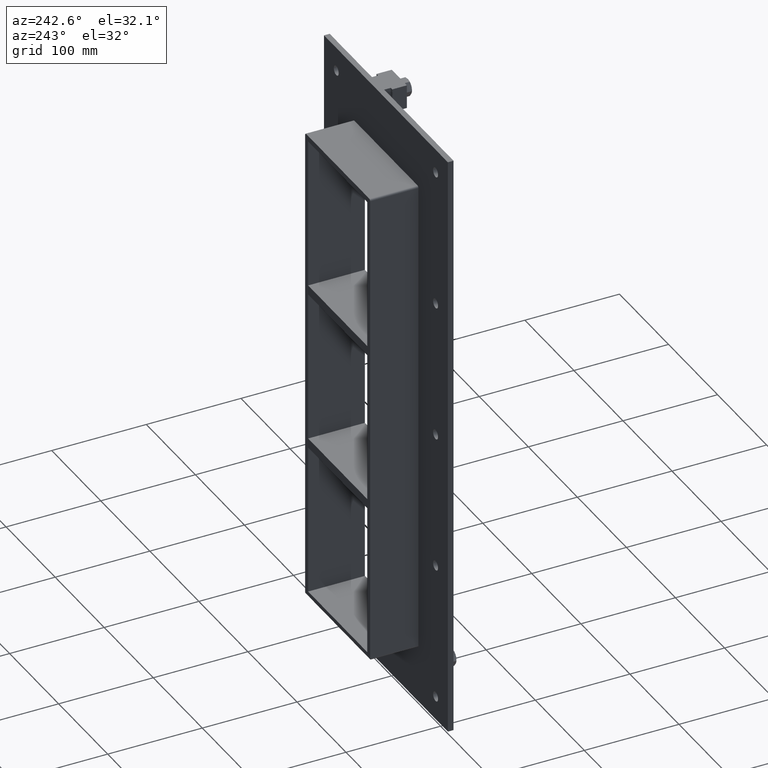
[diagram: clean part render]
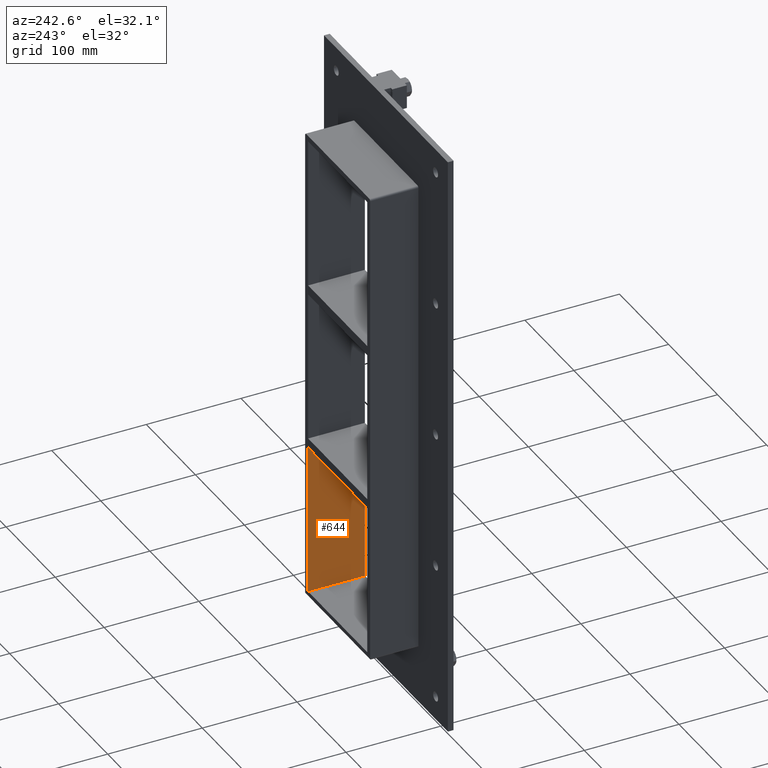
[diagram: same view with one face highlighted and labeled with its STEP entity id]
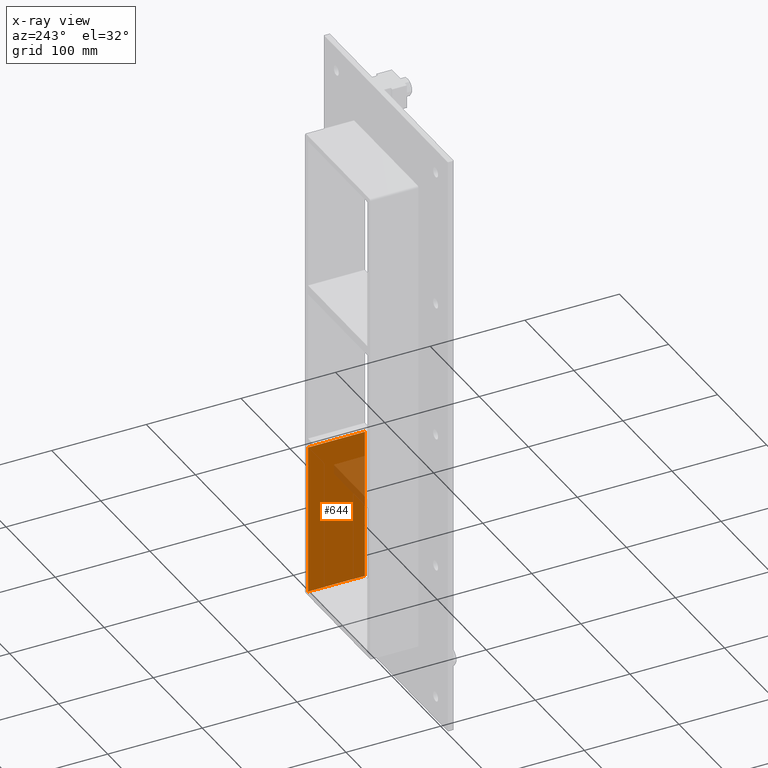
[diagram: x-ray of the same camera — body ghosted, the highlighted face saturated]
A machine part, auxiliary view. The second image highlights one B-rep face of the part: STEP entity #644.
The next image is the same camera in x-ray: the body ghosted, the highlighted face saturated — about 11% of this face is hidden behind the body in this view.
In plain terms, the highlighted planar face has unit normal (1, 0, 0).
Its self-contained STEP definition (entity closure, byte-faithful):
#526=CARTESIAN_POINT('',(60.249999999996362,-3.0,-89.750000000010957));
#527=VERTEX_POINT('',#526);
#544=CARTESIAN_POINT('',(60.249999999996369,57.0,-89.750000000010957));
#545=VERTEX_POINT('',#544);
#552=CARTESIAN_POINT('',(60.249999999999993,-3.0,-89.750000000010971));
#553=DIRECTION('',(0.0,1.0,0.0));
#554=VECTOR('',#553,60.000000000000007);
#555=LINE('',#552,#554);
#556=EDGE_CURVE('',#527,#545,#555,.T.);
#614=CARTESIAN_POINT('',(60.249999999999993,0.0,249.25));
#615=DIRECTION('',(1.0,0.0,0.0));
#616=DIRECTION('',(0.0,0.0,-1.0));
#617=AXIS2_PLACEMENT_3D('',#614,#615,#616);
#618=PLANE('',#617);
#619=ORIENTED_EDGE('',*,*,#556,.T.);
#620=CARTESIAN_POINT('',(60.249999999999993,57.0,-249.25));
#621=VERTEX_POINT('',#620);
#622=CARTESIAN_POINT('',(60.249999999999993,57.0,-249.25));
#623=DIRECTION('',(0.0,0.0,1.0));
#624=VECTOR('',#623,159.49999999998906);
#625=LINE('',#622,#624);
#626=EDGE_CURVE('',#621,#545,#625,.T.);
#627=ORIENTED_EDGE('',*,*,#626,.F.);
#628=CARTESIAN_POINT('',(60.249999999999993,-3.0,-249.25));
#629=VERTEX_POINT('',#628);
#630=CARTESIAN_POINT('',(60.249999999999993,56.999999999999993,-249.25));
#631=DIRECTION('',(0.0,-1.0,0.0));
#632=VECTOR('',#631,59.999999999999993);
#633=LINE('',#630,#632);
#634=EDGE_CURVE('',#621,#629,#633,.T.);
#635=ORIENTED_EDGE('',*,*,#634,.T.);
#636=CARTESIAN_POINT('',(60.249999999999993,-3.0,-89.750000000010942));
#637=DIRECTION('',(0.0,0.0,-1.0));
#638=VECTOR('',#637,159.49999999998906);
#639=LINE('',#636,#638);
#640=EDGE_CURVE('',#527,#629,#639,.T.);
#641=ORIENTED_EDGE('',*,*,#640,.F.);
#642=EDGE_LOOP('',(#619,#627,#635,#641));
#643=FACE_OUTER_BOUND('',#642,.T.);
#644=ADVANCED_FACE('',(#643),#618,.F.);